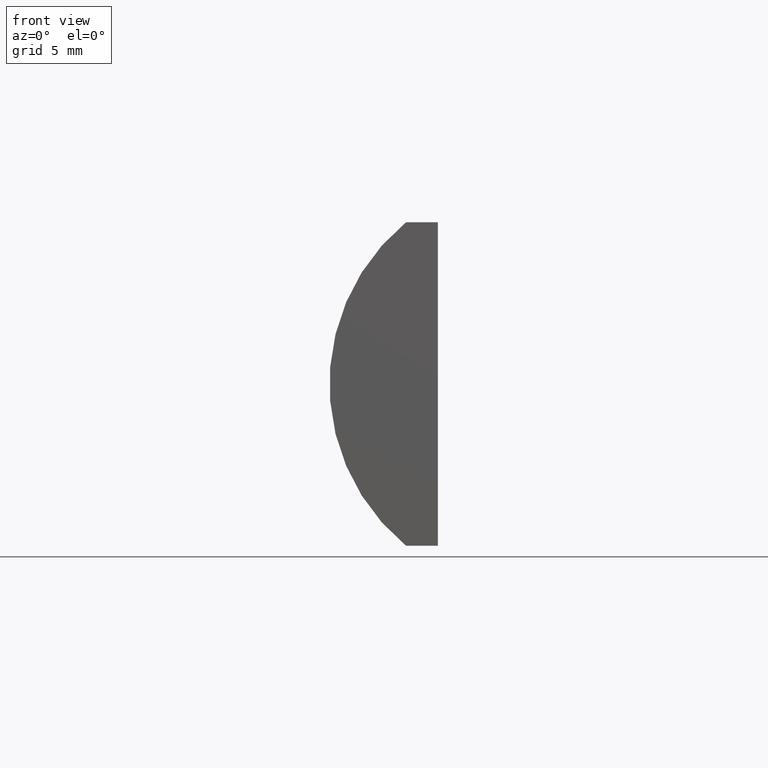
[diagram: clean part render]
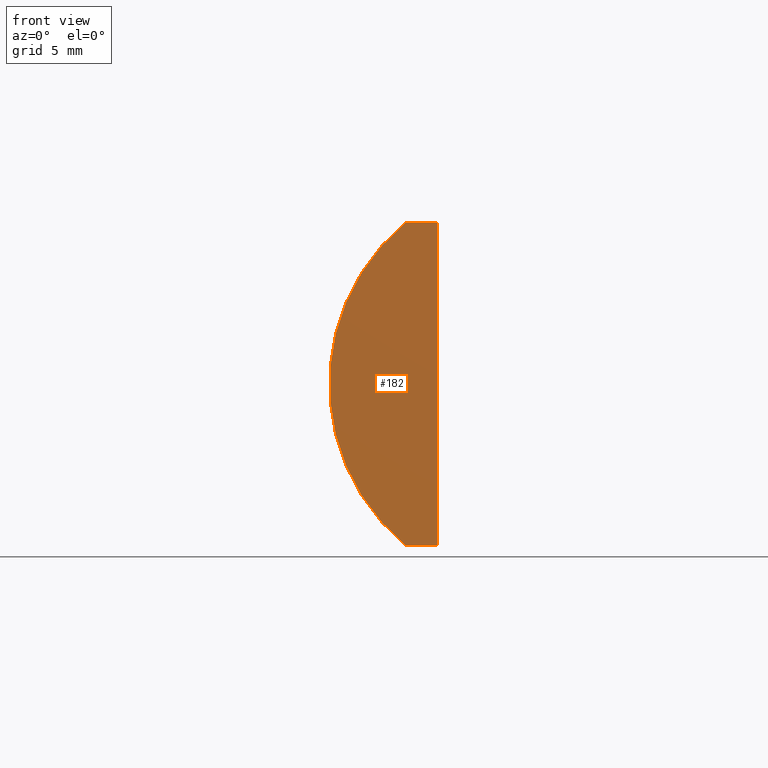
[diagram: same view with one face highlighted and labeled with its STEP entity id]
A machine part, front view. The second image highlights one B-rep face of the part: STEP entity #182.
In plain terms, the highlighted planar face has unit normal (0, 1, 0).
Its self-contained STEP definition (entity closure, byte-faithful):
#2 = CARTESIAN_POINT ( 'NONE',  ( -1.874795665148728500, 0.0000000000000000000, 10.00000000000000000 ) ) ;
#8 = VERTEX_POINT ( 'NONE', #104 ) ;
#19 = VECTOR ( 'NONE', #87, 1000.000000000000000 ) ;
#29 = ORIENTED_EDGE ( 'NONE', *, *, #36, .F. ) ;
#32 = EDGE_CURVE ( 'NONE', #108, #204, #158, .T. ) ;
#36 = EDGE_CURVE ( 'NONE', #8, #185, #122, .T. ) ;
#54 = EDGE_LOOP ( 'NONE', ( #29, #81, #70, #135 ) ) ;
#60 = CARTESIAN_POINT ( 'NONE',  ( -3.841435220478750500, 0.0000000000000000000, -10.00000000000000000 ) ) ;
#61 = FACE_OUTER_BOUND ( 'NONE', #54, .T. ) ;
#70 = ORIENTED_EDGE ( 'NONE', *, *, #32, .F. ) ;
#79 = DIRECTION ( 'NONE',  ( 0.0000000000000000000, -0.0000000000000000000, 1.000000000000000000 ) ) ;
#80 = AXIS2_PLACEMENT_3D ( 'NONE', #140, #161, #153 ) ;
#81 = ORIENTED_EDGE ( 'NONE', *, *, #186, .F. ) ;
#87 = DIRECTION ( 'NONE',  ( 1.000000000000000000, 0.0000000000000000000, 0.0000000000000000000 ) ) ;
#88 = VECTOR ( 'NONE', #173, 1000.000000000000000 ) ;
#104 = CARTESIAN_POINT ( 'NONE',  ( -3.841435220478750500, 0.0000000000000000000, -10.00000000000000000 ) ) ;
#108 = VERTEX_POINT ( 'NONE', #2 ) ;
#110 = DIRECTION ( 'NONE',  ( 0.0000000000000000000, 1.000000000000000000, 0.0000000000000000000 ) ) ;
#118 = LINE ( 'NONE', #128, #19 ) ;
#122 = CIRCLE ( 'NONE', #80, 12.93000000000002500 ) ;
#127 = EDGE_CURVE ( 'NONE', #185, #108, #118, .T. ) ;
#128 = CARTESIAN_POINT ( 'NONE',  ( -3.841435220478750500, 0.0000000000000000000, 10.00000000000000000 ) ) ;
#133 = CARTESIAN_POINT ( 'NONE',  ( 4.355204334851265500, 0.0000000000000000000, 4.286263797015675000E-017 ) ) ;
#134 = VECTOR ( 'NONE', #198, 1000.000000000000000 ) ;
#135 = ORIENTED_EDGE ( 'NONE', *, *, #127, .F. ) ;
#140 = CARTESIAN_POINT ( 'NONE',  ( 4.355204334851265500, 0.0000000000000000000, 4.286263797015675000E-017 ) ) ;
#143 = CARTESIAN_POINT ( 'NONE',  ( -3.841435220478750500, 0.0000000000000000000, 10.00000000000000000 ) ) ;
#144 = AXIS2_PLACEMENT_3D ( 'NONE', #133, #110, #79 ) ;
#153 = DIRECTION ( 'NONE',  ( 0.0000000000000000000, 0.0000000000000000000, 1.000000000000000000 ) ) ;
#158 = LINE ( 'NONE', #166, #134 ) ;
#159 = CARTESIAN_POINT ( 'NONE',  ( -1.874795665148734500, 0.0000000000000000000, -10.00000000000000400 ) ) ;
#161 = DIRECTION ( 'NONE',  ( 0.0000000000000000000, 1.000000000000000000, 0.0000000000000000000 ) ) ;
#166 = CARTESIAN_POINT ( 'NONE',  ( -1.874795665148734500, 0.0000000000000000000, -10.00000000000000400 ) ) ;
#173 = DIRECTION ( 'NONE',  ( -1.000000000000000000, -0.0000000000000000000, 1.764149888346681200E-015 ) ) ;
#182 = ADVANCED_FACE ( 'NONE', ( #61 ), #192, .F. ) ;
#185 = VERTEX_POINT ( 'NONE', #143 ) ;
#186 = EDGE_CURVE ( 'NONE', #204, #8, #188, .T. ) ;
#188 = LINE ( 'NONE', #60, #88 ) ;
#192 = PLANE ( 'NONE',  #144 ) ;
#198 = DIRECTION ( 'NONE',  ( -3.035766082959411900E-016, -0.0000000000000000000, -1.000000000000000000 ) ) ;
#204 = VERTEX_POINT ( 'NONE', #159 ) ;